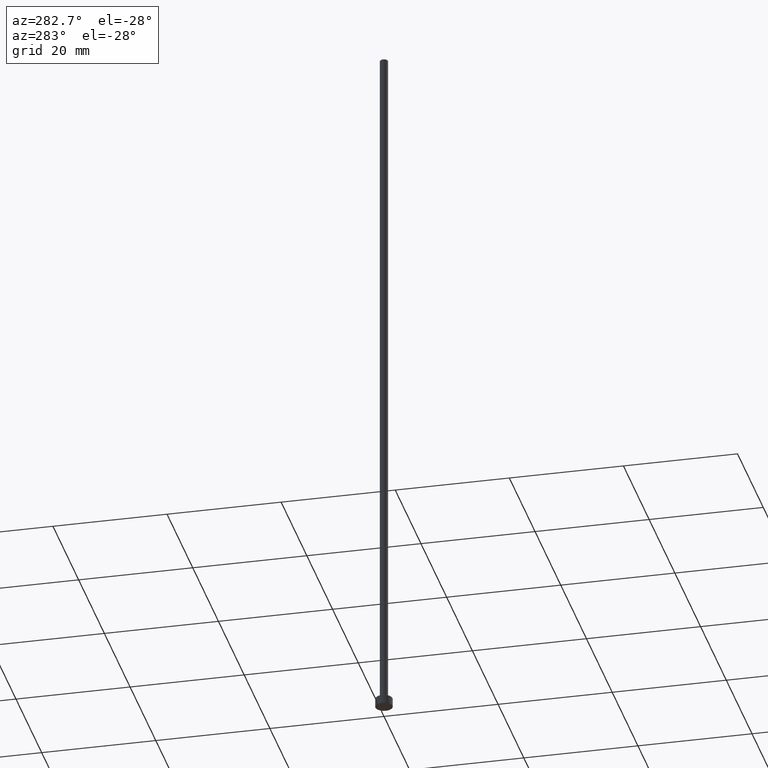
[diagram: clean part render]
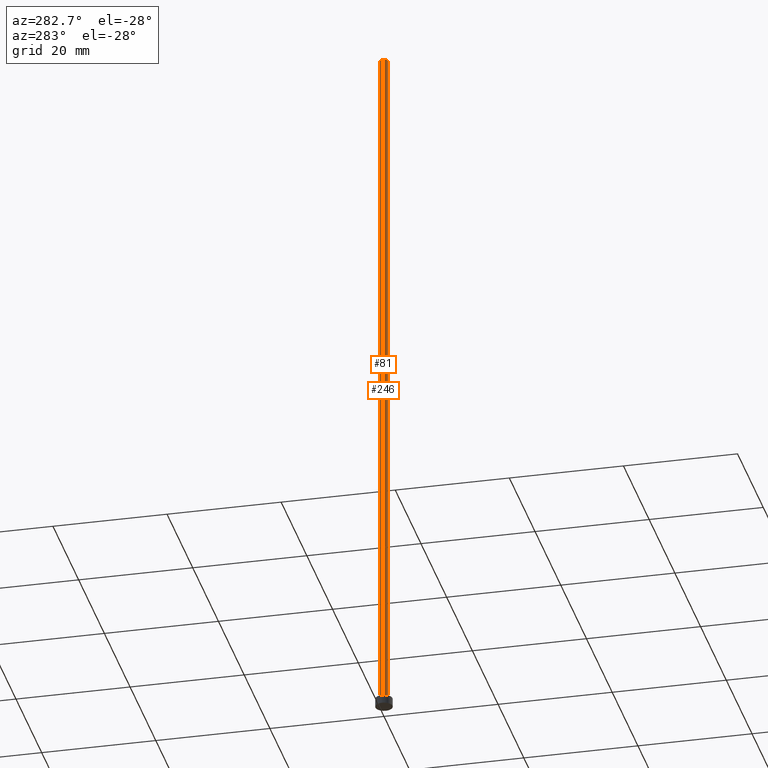
[diagram: same view with one multi-face feature highlighted, each face labeled with its STEP entity id]
A machine part, auxiliary view. The highlighted faces form ONE feature: a constant-radius fillet chain: 2 tangent blend faces with common blend radius 0.7 mm. The faces share edges in the B-rep.
Their STEP definitions:
[1] entity #246 (Cylinder):
#11 = DIRECTION ( 'NONE',  ( 0.000000000000000000, 0.000000000000000000, 1.000000000000000000 ) ) ;
#32 = CARTESIAN_POINT ( 'NONE',  ( -0.6999999999999999556, 0.000000000000000000, 1.500000000000000000 ) ) ;
#51 = DIRECTION ( 'NONE',  ( 1.000000000000000000, 0.000000000000000000, 0.000000000000000000 ) ) ;
#52 = DIRECTION ( 'NONE',  ( -0.000000000000000000, -0.000000000000000000, -1.000000000000000000 ) ) ;
#58 = CIRCLE ( 'NONE', #123, 0.6999999999999999556 ) ;
#62 = EDGE_CURVE ( 'NONE', #115, #179, #200, .T. ) ;
#82 = AXIS2_PLACEMENT_3D ( 'NONE', #153, #52, #192 ) ;
#84 = VERTEX_POINT ( 'NONE', #32 ) ;
#88 = DIRECTION ( 'NONE',  ( 1.000000000000000000, 0.000000000000000000, 0.000000000000000000 ) ) ;
#91 = CARTESIAN_POINT ( 'NONE',  ( 0.000000000000000000, 0.000000000000000000, 125.0000000000000000 ) ) ;
#95 = CYLINDRICAL_SURFACE ( 'NONE', #82, 0.6999999999999999556 ) ;
#97 = CARTESIAN_POINT ( 'NONE',  ( 0.000000000000000000, 0.000000000000000000, 1.500000000000000000 ) ) ;
#98 = DIRECTION ( 'NONE',  ( 0.000000000000000000, 0.000000000000000000, 1.000000000000000000 ) ) ;
#99 = VERTEX_POINT ( 'NONE', #151 ) ;
#110 = CARTESIAN_POINT ( 'NONE',  ( -0.6999999999999999556, 0.000000000000000000, 125.0000000000000000 ) ) ;
#115 = VERTEX_POINT ( 'NONE', #224 ) ;
#120 = EDGE_CURVE ( 'NONE', #115, #99, #227, .T. ) ;
#123 = AXIS2_PLACEMENT_3D ( 'NONE', #97, #98, #51 ) ;
#128 = CARTESIAN_POINT ( 'NONE',  ( -0.6999999999999999556, 0.000000000000000000, 125.0000000000000000 ) ) ;
#132 = CARTESIAN_POINT ( 'NONE',  ( 0.6999999999999999556, 8.572527594031471957E-17, 125.0000000000000000 ) ) ;
#136 = DIRECTION ( 'NONE',  ( -0.000000000000000000, -0.000000000000000000, -1.000000000000000000 ) ) ;
#139 = EDGE_LOOP ( 'NONE', ( #204, #160, #194, #184 ) ) ;
#151 = CARTESIAN_POINT ( 'NONE',  ( 0.6999999999999999556, 8.572527594031471957E-17, 1.500000000000000000 ) ) ;
#152 = EDGE_CURVE ( 'NONE', #179, #84, #175, .T. ) ;
#153 = CARTESIAN_POINT ( 'NONE',  ( 0.000000000000000000, 0.000000000000000000, 125.0000000000000000 ) ) ;
#160 = ORIENTED_EDGE ( 'NONE', *, *, #120, .T. ) ;
#175 = LINE ( 'NONE', #128, #214 ) ;
#179 = VERTEX_POINT ( 'NONE', #110 ) ;
#184 = ORIENTED_EDGE ( 'NONE', *, *, #152, .F. ) ;
#192 = DIRECTION ( 'NONE',  ( -1.000000000000000000, 0.000000000000000000, 0.000000000000000000 ) ) ;
#194 = ORIENTED_EDGE ( 'NONE', *, *, #252, .T. ) ;
#200 = CIRCLE ( 'NONE', #219, 0.6999999999999999556 ) ;
#204 = ORIENTED_EDGE ( 'NONE', *, *, #62, .F. ) ;
#208 = VECTOR ( 'NONE', #247, 1000.000000000000000 ) ;
#214 = VECTOR ( 'NONE', #136, 1000.000000000000000 ) ;
#219 = AXIS2_PLACEMENT_3D ( 'NONE', #91, #11, #88 ) ;
#224 = CARTESIAN_POINT ( 'NONE',  ( 0.6999999999999999556, 8.572527594031471957E-17, 125.0000000000000000 ) ) ;
#226 = FACE_OUTER_BOUND ( 'NONE', #139, .T. ) ;
#227 = LINE ( 'NONE', #132, #208 ) ;
#246 = ADVANCED_FACE ( 'NONE', ( #226 ), #95, .T. ) ;
#247 = DIRECTION ( 'NONE',  ( -0.000000000000000000, -0.000000000000000000, -1.000000000000000000 ) ) ;
#252 = EDGE_CURVE ( 'NONE', #99, #84, #58, .T. ) ;
[2] entity #81 (Cylinder):
#20 = ORIENTED_EDGE ( 'NONE', *, *, #152, .T. ) ;
#32 = CARTESIAN_POINT ( 'NONE',  ( -0.6999999999999999556, 0.000000000000000000, 1.500000000000000000 ) ) ;
#39 = ORIENTED_EDGE ( 'NONE', *, *, #107, .F. ) ;
#41 = CARTESIAN_POINT ( 'NONE',  ( 0.000000000000000000, 0.000000000000000000, 1.500000000000000000 ) ) ;
#53 = DIRECTION ( 'NONE',  ( 1.000000000000000000, 0.000000000000000000, 0.000000000000000000 ) ) ;
#56 = AXIS2_PLACEMENT_3D ( 'NONE', #41, #105, #186 ) ;
#59 = EDGE_CURVE ( 'NONE', #84, #99, #172, .T. ) ;
#63 = DIRECTION ( 'NONE',  ( -0.000000000000000000, -0.000000000000000000, -1.000000000000000000 ) ) ;
#72 = DIRECTION ( 'NONE',  ( 0.000000000000000000, 0.000000000000000000, 1.000000000000000000 ) ) ;
#81 = ADVANCED_FACE ( 'NONE', ( #92 ), #85, .T. ) ;
#84 = VERTEX_POINT ( 'NONE', #32 ) ;
#85 = CYLINDRICAL_SURFACE ( 'NONE', #243, 0.6999999999999999556 ) ;
#92 = FACE_OUTER_BOUND ( 'NONE', #231, .T. ) ;
#93 = DIRECTION ( 'NONE',  ( -1.000000000000000000, 0.000000000000000000, 0.000000000000000000 ) ) ;
#99 = VERTEX_POINT ( 'NONE', #151 ) ;
#100 = ORIENTED_EDGE ( 'NONE', *, *, #120, .F. ) ;
#105 = DIRECTION ( 'NONE',  ( 0.000000000000000000, 0.000000000000000000, 1.000000000000000000 ) ) ;
#107 = EDGE_CURVE ( 'NONE', #179, #115, #222, .T. ) ;
#110 = CARTESIAN_POINT ( 'NONE',  ( -0.6999999999999999556, 0.000000000000000000, 125.0000000000000000 ) ) ;
#115 = VERTEX_POINT ( 'NONE', #224 ) ;
#116 = AXIS2_PLACEMENT_3D ( 'NONE', #133, #72, #53 ) ;
#120 = EDGE_CURVE ( 'NONE', #115, #99, #227, .T. ) ;
#128 = CARTESIAN_POINT ( 'NONE',  ( -0.6999999999999999556, 0.000000000000000000, 125.0000000000000000 ) ) ;
#132 = CARTESIAN_POINT ( 'NONE',  ( 0.6999999999999999556, 8.572527594031471957E-17, 125.0000000000000000 ) ) ;
#133 = CARTESIAN_POINT ( 'NONE',  ( 0.000000000000000000, 0.000000000000000000, 125.0000000000000000 ) ) ;
#136 = DIRECTION ( 'NONE',  ( -0.000000000000000000, -0.000000000000000000, -1.000000000000000000 ) ) ;
#151 = CARTESIAN_POINT ( 'NONE',  ( 0.6999999999999999556, 8.572527594031471957E-17, 1.500000000000000000 ) ) ;
#152 = EDGE_CURVE ( 'NONE', #179, #84, #175, .T. ) ;
#170 = CARTESIAN_POINT ( 'NONE',  ( 0.000000000000000000, 0.000000000000000000, 125.0000000000000000 ) ) ;
#172 = CIRCLE ( 'NONE', #56, 0.6999999999999999556 ) ;
#175 = LINE ( 'NONE', #128, #214 ) ;
#179 = VERTEX_POINT ( 'NONE', #110 ) ;
#186 = DIRECTION ( 'NONE',  ( 1.000000000000000000, 0.000000000000000000, 0.000000000000000000 ) ) ;
#199 = ORIENTED_EDGE ( 'NONE', *, *, #59, .T. ) ;
#208 = VECTOR ( 'NONE', #247, 1000.000000000000000 ) ;
#214 = VECTOR ( 'NONE', #136, 1000.000000000000000 ) ;
#222 = CIRCLE ( 'NONE', #116, 0.6999999999999999556 ) ;
#224 = CARTESIAN_POINT ( 'NONE',  ( 0.6999999999999999556, 8.572527594031471957E-17, 125.0000000000000000 ) ) ;
#227 = LINE ( 'NONE', #132, #208 ) ;
#231 = EDGE_LOOP ( 'NONE', ( #100, #39, #20, #199 ) ) ;
#243 = AXIS2_PLACEMENT_3D ( 'NONE', #170, #63, #93 ) ;
#247 = DIRECTION ( 'NONE',  ( -0.000000000000000000, -0.000000000000000000, -1.000000000000000000 ) ) ;